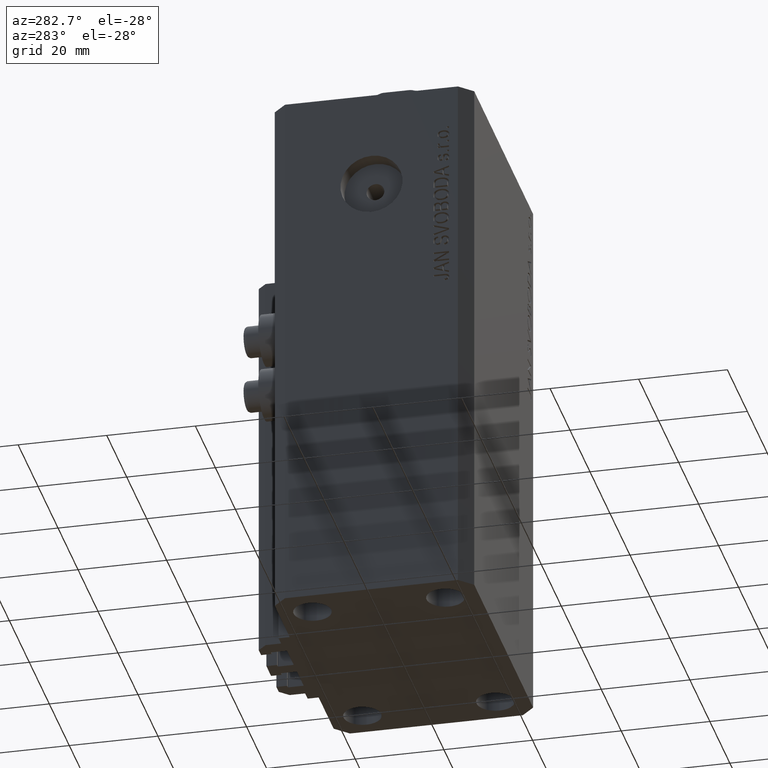
[diagram: clean part render]
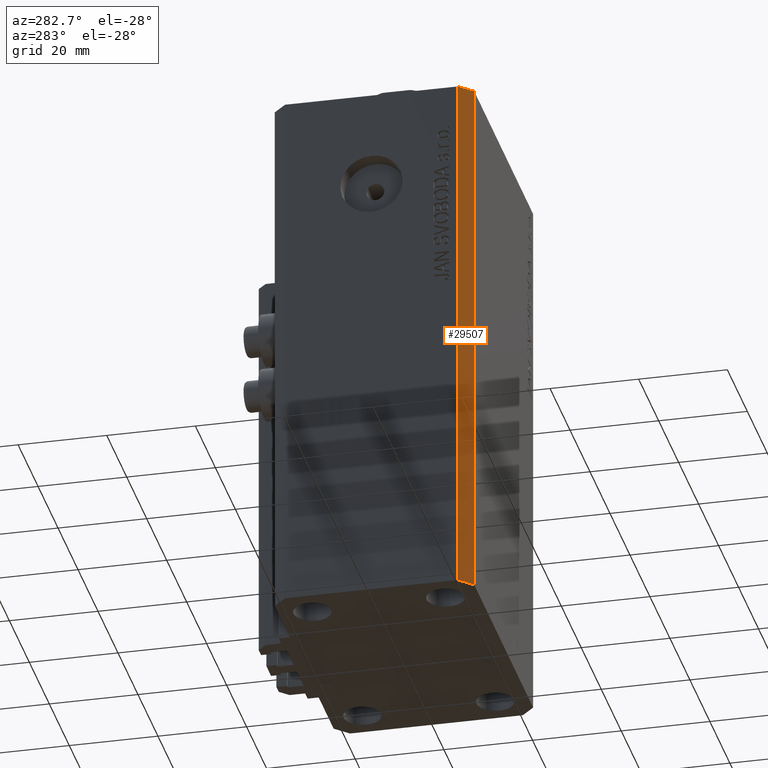
[diagram: same view with one face highlighted and labeled with its STEP entity id]
A machine part, auxiliary view. The second image highlights one B-rep face of the part: STEP entity #29507.
In plain terms, the highlighted planar face has unit normal (-0.7071, -0.7071, 0).
Its self-contained STEP definition (entity closure, byte-faithful):
#276 = EDGE_CURVE ( 'NONE', #10479, #25262, #39083, .T. ) ;
#4264 = ORIENTED_EDGE ( 'NONE', *, *, #9556, .F. ) ;
#5734 = ORIENTED_EDGE ( 'NONE', *, *, #20647, .T. ) ;
#7479 = DIRECTION ( 'NONE',  ( 0.000000000000000000, 0.000000000000000000, 1.000000000000000000 ) ) ;
#7511 = ORIENTED_EDGE ( 'NONE', *, *, #7603, .F. ) ;
#7603 = EDGE_CURVE ( 'NONE', #10479, #19098, #11988, .T. ) ;
#9556 = EDGE_CURVE ( 'NONE', #19098, #23196, #35543, .T. ) ;
#10447 = CARTESIAN_POINT ( 'NONE',  ( -32.49999999999650413, -19.49999999999949907, -123.0000000000000000 ) ) ;
#10479 = VERTEX_POINT ( 'NONE', #22399 ) ;
#11313 = VECTOR ( 'NONE', #20714, 1000.000000000000114 ) ;
#11527 = VECTOR ( 'NONE', #26530, 1000.000000000000000 ) ;
#11988 = LINE ( 'NONE', #34168, #11527 ) ;
#14009 = DIRECTION ( 'NONE',  ( -0.7071067811865475727, -0.7071067811865475727, 0.000000000000000000 ) ) ;
#14944 = DIRECTION ( 'NONE',  ( 0.7071067811865474617, -0.7071067811865474617, 0.000000000000000000 ) ) ;
#18831 = CARTESIAN_POINT ( 'NONE',  ( -32.49999999999650413, -19.49999999999949907, 0.000000000000000000 ) ) ;
#19098 = VERTEX_POINT ( 'NONE', #18831 ) ;
#20647 = EDGE_CURVE ( 'NONE', #25262, #23196, #28481, .T. ) ;
#20714 = DIRECTION ( 'NONE',  ( 0.7071067811865474617, -0.7071067811865474617, 0.000000000000000000 ) ) ;
#21215 = CARTESIAN_POINT ( 'NONE',  ( -32.49999999999650413, -19.49999999999949907, 0.000000000000000000 ) ) ;
#22399 = CARTESIAN_POINT ( 'NONE',  ( -32.49999999999650413, -19.49999999999949907, -123.0000000000000000 ) ) ;
#23196 = VERTEX_POINT ( 'NONE', #46818 ) ;
#24407 = CARTESIAN_POINT ( 'NONE',  ( -29.49999999999650413, -22.49999999999949907, -123.0000000000000000 ) ) ;
#25262 = VERTEX_POINT ( 'NONE', #24407 ) ;
#26530 = DIRECTION ( 'NONE',  ( 0.000000000000000000, 0.000000000000000000, 1.000000000000000000 ) ) ;
#28481 = LINE ( 'NONE', #43046, #40236 ) ;
#29248 = FACE_OUTER_BOUND ( 'NONE', #34060, .T. ) ;
#29507 = ADVANCED_FACE ( 'NONE', ( #29248 ), #43564, .T. ) ;
#29875 = VECTOR ( 'NONE', #31967, 1000.000000000000114 ) ;
#31967 = DIRECTION ( 'NONE',  ( 0.7071067811865474617, -0.7071067811865474617, 0.000000000000000000 ) ) ;
#34060 = EDGE_LOOP ( 'NONE', ( #4264, #7511, #38617, #5734 ) ) ;
#34168 = CARTESIAN_POINT ( 'NONE',  ( -32.49999999999650413, -19.49999999999949907, -123.0000000000000000 ) ) ;
#35543 = LINE ( 'NONE', #21215, #29875 ) ;
#36404 = CARTESIAN_POINT ( 'NONE',  ( -32.49999999999650413, -19.49999999999949907, -123.0000000000000000 ) ) ;
#38617 = ORIENTED_EDGE ( 'NONE', *, *, #276, .T. ) ;
#39083 = LINE ( 'NONE', #10447, #11313 ) ;
#40236 = VECTOR ( 'NONE', #7479, 1000.000000000000000 ) ;
#43046 = CARTESIAN_POINT ( 'NONE',  ( -29.49999999999650413, -22.49999999999949907, -123.0000000000000000 ) ) ;
#43564 = PLANE ( 'NONE',  #47175 ) ;
#46818 = CARTESIAN_POINT ( 'NONE',  ( -29.49999999999650413, -22.49999999999949907, 0.000000000000000000 ) ) ;
#47175 = AXIS2_PLACEMENT_3D ( 'NONE', #36404, #14009, #14944 ) ;